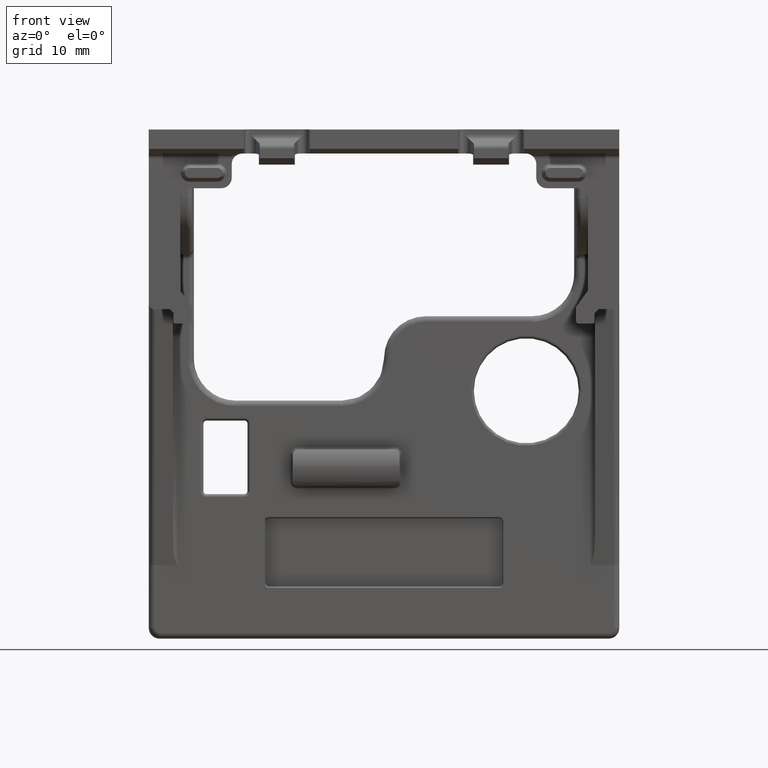
[diagram: clean part render]
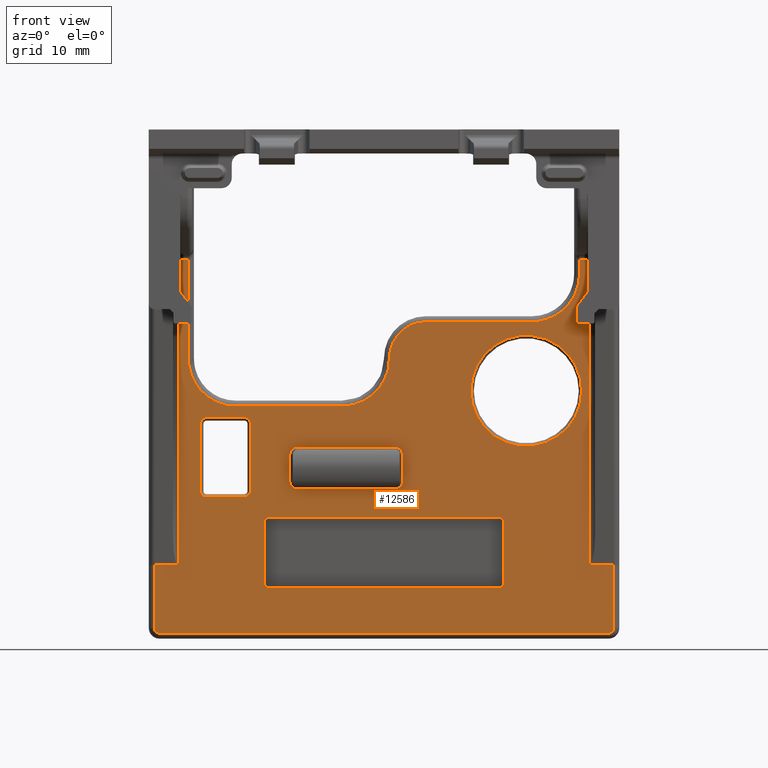
[diagram: same view with one face highlighted and labeled with its STEP entity id]
A machine part, front view. The second image highlights one B-rep face of the part: STEP entity #12586.
In plain terms, the highlighted planar face has unit normal (0, 1, 0).
Its self-contained STEP definition (entity closure, byte-faithful):
#5751=CARTESIAN_POINT('',(-1.69E1,1.568797314278E-10,3.2E0));
#5752=DIRECTION('',(0.E0,1.E0,0.E0));
#5753=DIRECTION('',(-1.E0,0.E0,0.E0));
#5754=AXIS2_PLACEMENT_3D('',#5751,#5752,#5753);
#5766=DIRECTION('',(0.E0,0.E0,-1.E0));
#5767=VECTOR('',#5766,5.9E0);
#5768=CARTESIAN_POINT('',(-1.137248412894E1,0.E0,-6.1E0));
#5769=LINE('',#5768,#5767);
#5770=DIRECTION('',(1.E0,0.E0,0.E0));
#5771=VECTOR('',#5770,2.19E1);
#5772=CARTESIAN_POINT('',(-1.095E1,0.E0,-1.242248412894E1));
#5773=LINE('',#5772,#5771);
#5774=DIRECTION('',(0.E0,0.E0,1.E0));
#5775=VECTOR('',#5774,5.9E0);
#5776=CARTESIAN_POINT('',(1.137248412894E1,0.E0,-1.2E1));
#5777=LINE('',#5776,#5775);
#5778=DIRECTION('',(-1.E0,0.E0,0.E0));
#5779=VECTOR('',#5778,2.19E1);
#5780=CARTESIAN_POINT('',(1.095E1,0.E0,-5.677515871064E0));
#5781=LINE('',#5780,#5779);
#5782=CARTESIAN_POINT('',(-8.225E0,-1.701394580778E-10,-2.27E0));
#5783=DIRECTION('',(0.E0,-1.E0,0.E0));
#5784=DIRECTION('',(-1.E0,0.E0,0.E0));
#5785=AXIS2_PLACEMENT_3D('',#5782,#5783,#5784);
#5787=DIRECTION('',(1.E0,0.E0,-5.068109294991E-11));
#5788=VECTOR('',#5787,9.250000001111E0);
#5789=CARTESIAN_POINT('',(-8.225000001138E0,0.E0,-3.015674315309E0));
#5790=LINE('',#5789,#5788);
#5791=CARTESIAN_POINT('',(1.025E0,-1.701394580778E-10,-2.27E0));
#5792=DIRECTION('',(0.E0,-1.E0,0.E0));
#5793=DIRECTION('',(0.E0,0.E0,-1.E0));
#5794=AXIS2_PLACEMENT_3D('',#5791,#5792,#5793);
#5796=DIRECTION('',(1.875200438538E-10,0.E0,1.E0));
#5797=VECTOR('',#5796,2.500000001111E0);
#5798=CARTESIAN_POINT('',(1.770674315309E0,0.E0,-2.270000001138E0));
#5799=LINE('',#5798,#5797);
#5800=CARTESIAN_POINT('',(1.025E0,-1.701394580778E-10,2.3E-1));
#5801=DIRECTION('',(0.E0,-1.E0,0.E0));
#5802=DIRECTION('',(1.E0,0.E0,0.E0));
#5803=AXIS2_PLACEMENT_3D('',#5800,#5801,#5802);
#5805=DIRECTION('',(-1.E0,0.E0,5.068105694267E-11));
#5806=VECTOR('',#5805,9.250000001111E0);
#5807=CARTESIAN_POINT('',(1.025000001138E0,0.E0,9.756743153089E-1));
#5808=LINE('',#5807,#5806);
#5809=CARTESIAN_POINT('',(-8.225E0,-1.701394580778E-10,2.3E-1));
#5810=DIRECTION('',(0.E0,-1.E0,0.E0));
#5811=DIRECTION('',(0.E0,0.E0,1.E0));
#5812=AXIS2_PLACEMENT_3D('',#5809,#5810,#5811);
#5814=DIRECTION('',(-1.875200438538E-10,0.E0,-1.E0));
#5815=VECTOR('',#5814,2.500000001111E0);
#5816=CARTESIAN_POINT('',(-8.970674315309E0,0.E0,2.300000011381E-1));
#5817=LINE('',#5816,#5815);
#5818=DIRECTION('',(-1.E0,0.E0,0.E0));
#5819=VECTOR('',#5818,2.282402475635E0);
#5820=CARTESIAN_POINT('',(2.188240247564E1,0.E0,-1.026E1));
#5821=LINE('',#5820,#5819);
#5834=CARTESIAN_POINT('',(1.96E1,0.E0,-1.026E1));
#5836=DIRECTION('',(0.E0,0.E0,-1.E0));
#5837=VECTOR('',#5836,2.861E1);
#5838=CARTESIAN_POINT('',(1.96E1,0.E0,1.835E1));
#5839=LINE('',#5838,#5837);
#5849=CARTESIAN_POINT('',(1.91E1,-2.807309940067E-12,1.835E1));
#5850=DIRECTION('',(0.E0,1.E0,0.E0));
#5851=DIRECTION('',(0.E0,0.E0,1.E0));
#5852=AXIS2_PLACEMENT_3D('',#5849,#5850,#5851);
#5864=DIRECTION('',(9.999999999994E-1,-1.115473910280E-6,-3.820009639332E-12));
#5865=VECTOR('',#5864,4.650137060154E-1);
#5866=CARTESIAN_POINT('',(1.863498629398E1,5.187106569826E-7,1.885E1));
#5867=LINE('',#5866,#5865);
#5877=CARTESIAN_POINT('',(1.861753122991E1,3.261871760391E-6,1.885015230477E1));
#5878=CARTESIAN_POINT('',(1.862043529786E1,3.119078111559E-6,1.885010188189E1));
#5879=CARTESIAN_POINT('',(1.862624843806E1,-1.968533619485E-6,
1.885001947512E1));
#5880=CARTESIAN_POINT('',(1.863207196471E1,8.179891274100E-7,1.884999948886E1));
#5881=CARTESIAN_POINT('',(1.863498629398E1,5.187106569826E-7,1.885E1));
#6058=DIRECTION('',(-6.750178572765E-10,-2.271371194695E-6,-9.999999999974E-1));
#6059=VECTOR('',#6058,1.428368905518E0);
#6060=CARTESIAN_POINT('',(1.861753122991E1,3.261871760391E-6,1.885015230477E1));
#6061=LINE('',#6060,#6059);
#6066=CARTESIAN_POINT('',(1.861753122895E1,1.751577299869E-8,1.742178339925E1));
#6067=CARTESIAN_POINT('',(1.861753136959E1,3.725587004752E-9,1.731899422895E1));
#6068=CARTESIAN_POINT('',(1.861090192886E1,-1.729043933302E-9,
1.708360599469E1));
#6069=CARTESIAN_POINT('',(1.855656742175E1,4.632732594284E-10,
1.662925656447E1));
#6070=CARTESIAN_POINT('',(1.843393713479E1,-1.240491044118E-10,
1.610786980490E1));
#6071=CARTESIAN_POINT('',(1.822464242556E1,3.292315821890E-11,
1.554811762838E1));
#6072=CARTESIAN_POINT('',(1.791916062675E1,-7.643528463798E-12,
1.498436557461E1));
#6073=CARTESIAN_POINT('',(1.751977342179E1,-2.349044363712E-12,
1.445112459691E1));
#6074=CARTESIAN_POINT('',(1.704021030981E1,1.703970591865E-11,
1.397842787223E1));
#6075=CARTESIAN_POINT('',(1.650376020506E1,-6.580977931087E-11,
1.358832561388E1));
#6076=CARTESIAN_POINT('',(1.594142414470E1,2.461994113248E-10,
1.329310038423E1));
#6077=CARTESIAN_POINT('',(1.538804938341E1,-9.189878659884E-10,
1.309334303499E1));
#6078=CARTESIAN_POINT('',(1.487707445563E1,3.429752052629E-9,1.297807058479E1));
#6079=CARTESIAN_POINT('',(1.443820637953E1,-1.280002034453E-8,
1.292827306553E1));
#6080=CARTESIAN_POINT('',(1.421459482188E1,2.758021276881E-8,1.292246885623E1));
#6081=CARTESIAN_POINT('',(1.411821660075E1,1.792349196839E-8,1.292246877105E1));
#6105=DIRECTION('',(-1.E0,-1.771408211113E-9,0.E0));
#6106=VECTOR('',#6105,1.011821660075E1);
#6107=CARTESIAN_POINT('',(1.411821660075E1,1.792349196839E-8,1.292246877105E1));
#6108=LINE('',#6107,#6106);
#6118=CARTESIAN_POINT('',(4.E0,1.893596390801E-12,9.44E0));
#6119=DIRECTION('',(0.E0,-1.E0,0.E0));
#6120=DIRECTION('',(0.E0,0.E0,1.E0));
#6121=AXIS2_PLACEMENT_3D('',#6118,#6119,#6120);
#6133=DIRECTION('',(-1.332267629550E-13,0.E0,-1.E0));
#6134=VECTOR('',#6133,4.E-2);
#6135=CARTESIAN_POINT('',(5.175312289502E-1,0.E0,9.44E0));
#6136=LINE('',#6135,#6134);
#6146=CARTESIAN_POINT('',(-4.E0,5.844158490476E-12,9.4E0));
#6147=DIRECTION('',(0.E0,1.E0,0.E0));
#6148=DIRECTION('',(1.E0,0.E0,0.E0));
#6149=AXIS2_PLACEMENT_3D('',#6146,#6147,#6148);
#6161=DIRECTION('',(-1.E0,1.779547808840E-9,0.E0));
#6162=VECTOR('',#6161,1.011821660075E1);
#6163=CARTESIAN_POINT('',(-4.E0,0.E0,4.882468771050E0));
#6164=LINE('',#6163,#6162);
#6174=CARTESIAN_POINT('',(-1.411821660075E1,1.800585018123E-8,
4.882468771050E0));
#6175=CARTESIAN_POINT('',(-1.421460253727E1,2.980366850250E-8,
4.882468875632E0));
#6176=CARTESIAN_POINT('',(-1.443822652081E1,-1.383193026941E-8,
4.888274041215E0));
#6177=CARTESIAN_POINT('',(-1.487710297335E1,3.706253189172E-9,
4.938075311153E0));
#6178=CARTESIAN_POINT('',(-1.538807954412E1,-9.930824872801E-10,
5.053351862735E0));
#6179=CARTESIAN_POINT('',(-1.594144972586E1,2.660767599489E-10,
5.253111979931E0));
#6180=CARTESIAN_POINT('',(-1.650377756044E1,-7.122455251557E-11,
5.548336907034E0));
#6181=CARTESIAN_POINT('',(-1.704021815253E1,1.882145011335E-11,
5.938435229966E0));
#6182=CARTESIAN_POINT('',(-1.751977287025E1,-4.061247937846E-12,
6.411124785857E0));
#6183=CARTESIAN_POINT('',(-1.791915446900E1,-2.576458361969E-12,
6.944356852949E0));
#6184=CARTESIAN_POINT('',(-1.822463424895E1,1.436708138572E-11,
7.508100424165E0));
#6185=CARTESIAN_POINT('',(-1.843393006191E1,-5.489186718092E-11,
8.067847012847E0));
#6186=CARTESIAN_POINT('',(-1.855656349356E1,2.052003873380E-10,
8.589233533288E0));
#6187=CARTESIAN_POINT('',(-1.861090093122E1,-7.659096821709E-10,
9.043589212656E0));
#6188=CARTESIAN_POINT('',(-1.861753138869E1,1.650322333507E-9,
9.278987724248E0));
#6189=CARTESIAN_POINT('',(-1.861753122895E1,1.687169985202E-8,
9.381783399254E0));
#6222=DIRECTION('',(-2.895194995721E-10,3.399453058779E-7,9.999999999999E-1));
#6223=VECTOR('',#6222,9.468368905473E0);
#6224=CARTESIAN_POINT('',(-1.861753122895E1,1.687169985202E-8,
9.381783399254E0));
#6225=LINE('',#6224,#6223);
#6226=CARTESIAN_POINT('',(-1.861753123169E1,3.235599263587E-6,
1.885015230473E1));
#6255=CARTESIAN_POINT('',(-1.863498629398E1,5.086823554971E-7,1.885E1));
#6256=CARTESIAN_POINT('',(-1.863207196495E1,8.015990831187E-7,
1.884999949294E1));
#6257=CARTESIAN_POINT('',(-1.862624843784E1,-1.949993680886E-6,
1.885001953246E1));
#6258=CARTESIAN_POINT('',(-1.862043529945E1,3.098388278654E-6,
1.885010187758E1));
#6259=CARTESIAN_POINT('',(-1.861753123169E1,3.235599263587E-6,
1.885015230473E1));
#6272=DIRECTION('',(9.999999999994E-1,1.093908306169E-6,3.713049369397E-12));
#6273=VECTOR('',#6272,4.650137060196E-1);
#6274=CARTESIAN_POINT('',(-1.91E1,0.E0,1.885E1));
#6275=LINE('',#6274,#6273);
#6285=CARTESIAN_POINT('',(-1.91E1,-2.807309940067E-12,1.835E1));
#6286=DIRECTION('',(0.E0,1.E0,0.E0));
#6287=DIRECTION('',(-1.E0,0.E0,0.E0));
#6288=AXIS2_PLACEMENT_3D('',#6285,#6286,#6287);
#6300=CARTESIAN_POINT('',(-1.96E1,0.E0,-1.026E1));
#6318=DIRECTION('',(0.E0,0.E0,1.E0));
#6319=VECTOR('',#6318,2.861E1);
#6320=CARTESIAN_POINT('',(-1.96E1,0.E0,-1.026E1));
#6321=LINE('',#6320,#6319);
#6322=DIRECTION('',(-1.E0,0.E0,0.E0));
#6323=VECTOR('',#6322,2.282402475635E0);
#6324=CARTESIAN_POINT('',(-1.96E1,0.E0,-1.026E1));
#6325=LINE('',#6324,#6323);
#6756=DIRECTION('',(-1.104923573013E-5,0.E0,-9.999999999390E-1));
#6757=VECTOR('',#6756,6.000000000366E0);
#6758=CARTESIAN_POINT('',(-2.188240247564E1,0.E0,-1.026E1));
#6759=LINE('',#6758,#6757);
#6764=CARTESIAN_POINT('',(-2.14E1,2.745026428386E-12,-1.626E1));
#6765=DIRECTION('',(0.E0,-1.E0,0.E0));
#6766=DIRECTION('',(-1.E0,0.E0,0.E0));
#6767=AXIS2_PLACEMENT_3D('',#6764,#6765,#6766);
#6779=DIRECTION('',(1.E0,0.E0,0.E0));
#6780=VECTOR('',#6779,4.28E1);
#6781=CARTESIAN_POINT('',(-2.14E1,0.E0,-1.674246877105E1));
#6782=LINE('',#6781,#6780);
#6792=CARTESIAN_POINT('',(2.14E1,2.745026428386E-12,-1.626E1));
#6793=DIRECTION('',(0.E0,-1.E0,0.E0));
#6794=DIRECTION('',(0.E0,0.E0,-1.E0));
#6795=AXIS2_PLACEMENT_3D('',#6792,#6793,#6794);
#6824=DIRECTION('',(-1.104923572954E-5,0.E0,9.999999999390E-1));
#6825=VECTOR('',#6824,6.000000000366E0);
#6826=CARTESIAN_POINT('',(2.188246877105E1,0.E0,-1.626E1));
#6827=LINE('',#6826,#6825);
#8996=CARTESIAN_POINT('',(1.355E1,7.773781618425E-13,6.34E0));
#8997=DIRECTION('',(0.E0,1.E0,0.E0));
#8998=DIRECTION('',(-1.E0,0.E0,0.E0));
#8999=AXIS2_PLACEMENT_3D('',#8996,#8997,#8998);
#9011=CARTESIAN_POINT('',(1.355E1,7.773781618425E-13,6.34E0));
#9012=DIRECTION('',(0.E0,1.E0,0.E0));
#9013=DIRECTION('',(1.E0,0.E0,0.E0));
#9014=AXIS2_PLACEMENT_3D('',#9011,#9012,#9013);
#9082=CARTESIAN_POINT('',(-1.33E1,1.568797314278E-10,-3.2E0));
#9083=DIRECTION('',(0.E0,1.E0,0.E0));
#9084=DIRECTION('',(1.E0,0.E0,1.941465065629E-14));
#9085=AXIS2_PLACEMENT_3D('',#9082,#9083,#9084);
#9097=DIRECTION('',(-1.E0,0.E0,-2.238826408044E-12));
#9098=VECTOR('',#9097,3.600000000272E0);
#9099=CARTESIAN_POINT('',(-1.329999999962E1,0.E0,-3.771856913158E0));
#9100=LINE('',#9099,#9098);
#9110=CARTESIAN_POINT('',(-1.69E1,1.568797314278E-10,-3.2E0));
#9111=DIRECTION('',(0.E0,1.E0,0.E0));
#9112=DIRECTION('',(0.E0,0.E0,-1.E0));
#9113=AXIS2_PLACEMENT_3D('',#9110,#9111,#9112);
#9125=DIRECTION('',(-1.258992909871E-12,0.E0,1.E0));
#9126=VECTOR('',#9125,6.400000000272E0);
#9127=CARTESIAN_POINT('',(-1.747185691316E1,0.E0,-3.200000000379E0));
#9128=LINE('',#9127,#9126);
#9166=DIRECTION('',(1.259548021384E-12,0.E0,-1.E0));
#9167=VECTOR('',#9166,6.400000000272E0);
#9168=CARTESIAN_POINT('',(-1.272814308684E1,0.E0,3.200000000379E0));
#9169=LINE('',#9168,#9167);
#9179=CARTESIAN_POINT('',(-1.33E1,1.568797314278E-10,3.2E0));
#9180=DIRECTION('',(0.E0,1.E0,0.E0));
#9181=DIRECTION('',(0.E0,0.E0,1.E0));
#9182=AXIS2_PLACEMENT_3D('',#9179,#9180,#9181);
#9206=DIRECTION('',(1.E0,0.E0,2.239073124272E-12));
#9207=VECTOR('',#9206,3.600000000272E0);
#9208=CARTESIAN_POINT('',(-1.690000000038E1,0.E0,3.771856913158E0));
#9209=LINE('',#9208,#9207);
#9223=CARTESIAN_POINT('',(-1.095E1,0.E0,-6.1E0));
#9224=DIRECTION('',(0.E0,1.E0,0.E0));
#9225=DIRECTION('',(-1.E0,0.E0,0.E0));
#9226=AXIS2_PLACEMENT_3D('',#9223,#9224,#9225);
#9241=CARTESIAN_POINT('',(1.095E1,0.E0,-6.1E0));
#9242=DIRECTION('',(0.E0,1.E0,0.E0));
#9243=DIRECTION('',(0.E0,0.E0,1.E0));
#9244=AXIS2_PLACEMENT_3D('',#9241,#9242,#9243);
#9259=CARTESIAN_POINT('',(1.095E1,0.E0,-1.2E1));
#9260=DIRECTION('',(0.E0,1.E0,0.E0));
#9261=DIRECTION('',(1.E0,0.E0,0.E0));
#9262=AXIS2_PLACEMENT_3D('',#9259,#9260,#9261);
#9277=CARTESIAN_POINT('',(-1.095E1,0.E0,-1.2E1));
#9278=DIRECTION('',(0.E0,1.E0,0.E0));
#9279=DIRECTION('',(0.E0,0.E0,-1.E0));
#9280=AXIS2_PLACEMENT_3D('',#9277,#9278,#9279);
#10981=VERTEX_POINT('',#6300);
#10984=VERTEX_POINT('',#5834);
#11132=CARTESIAN_POINT('',(2.188240247564E1,0.E0,-1.026E1));
#11133=VERTEX_POINT('',#11132);
#11148=CARTESIAN_POINT('',(-2.188240247564E1,0.E0,-1.026E1));
#11149=VERTEX_POINT('',#11148);
#11268=VERTEX_POINT('',#6174);
#11269=VERTEX_POINT('',#6189);
#11270=CARTESIAN_POINT('',(-4.E0,0.E0,4.882468771050E0));
#11271=VERTEX_POINT('',#11270);
#11274=CARTESIAN_POINT('',(5.175288114768E-1,5.844158490476E-12,9.4E0));
#11275=VERTEX_POINT('',#11274);
#11278=CARTESIAN_POINT('',(5.175312289502E-1,0.E0,9.44E0));
#11279=VERTEX_POINT('',#11278);
#11282=CARTESIAN_POINT('',(4.E0,1.893596390801E-12,1.292246739496E1));
#11283=VERTEX_POINT('',#11282);
#11286=CARTESIAN_POINT('',(1.411821660075E1,1.792349196839E-8,
1.292246877105E1));
#11287=VERTEX_POINT('',#11286);
#11288=VERTEX_POINT('',#6066);
#11291=CARTESIAN_POINT('',(2.188246877105E1,0.E0,-1.626E1));
#11292=VERTEX_POINT('',#11291);
#11293=CARTESIAN_POINT('',(2.14E1,2.745026428386E-12,-1.674246711424E1));
#11294=VERTEX_POINT('',#11293);
#11297=CARTESIAN_POINT('',(-2.14E1,0.E0,-1.674246877105E1));
#11298=VERTEX_POINT('',#11297);
#11301=CARTESIAN_POINT('',(-2.188246711424E1,2.745026428386E-12,-1.626E1));
#11302=VERTEX_POINT('',#11301);
#11305=VERTEX_POINT('',#6226);
#11308=VERTEX_POINT('',#6255);
#11310=CARTESIAN_POINT('',(-1.91E1,0.E0,1.885E1));
#11311=VERTEX_POINT('',#11310);
#11312=CARTESIAN_POINT('',(-1.959999832450E1,-2.807309940067E-12,1.835E1));
#11313=VERTEX_POINT('',#11312);
#11314=CARTESIAN_POINT('',(1.96E1,0.E0,1.835E1));
#11315=VERTEX_POINT('',#11314);
#11316=CARTESIAN_POINT('',(1.91E1,-2.807309940067E-12,1.884999832450E1));
#11317=VERTEX_POINT('',#11316);
#11318=CARTESIAN_POINT('',(1.863498629398E1,5.187106569826E-7,1.885E1));
#11319=VERTEX_POINT('',#11318);
#11320=VERTEX_POINT('',#5877);
#11322=CARTESIAN_POINT('',(8.278143710276E0,7.773781618425E-13,6.34E0));
#11323=CARTESIAN_POINT('',(1.882185628972E1,7.773781618425E-13,6.34E0));
#11324=VERTEX_POINT('',#11322);
#11325=VERTEX_POINT('',#11323);
#11330=CARTESIAN_POINT('',(-1.272815194346E1,1.568797314278E-10,-3.2E0));
#11331=CARTESIAN_POINT('',(-1.33E1,1.568797314278E-10,-3.771848056543E0));
#11332=VERTEX_POINT('',#11330);
#11333=VERTEX_POINT('',#11331);
#11338=CARTESIAN_POINT('',(-1.689999999989E1,0.E0,-3.771856913166E0));
#11339=VERTEX_POINT('',#11338);
#11342=CARTESIAN_POINT('',(-1.747184805654E1,1.568797314278E-10,-3.2E0));
#11343=VERTEX_POINT('',#11342);
#11346=CARTESIAN_POINT('',(-1.747185691317E1,0.E0,3.199999999893E0));
#11347=VERTEX_POINT('',#11346);
#11350=CARTESIAN_POINT('',(-1.69E1,1.568797314278E-10,3.771848056543E0));
#11351=VERTEX_POINT('',#11350);
#11354=CARTESIAN_POINT('',(-1.330000000011E1,0.E0,3.771856913166E0));
#11355=VERTEX_POINT('',#11354);
#11358=CARTESIAN_POINT('',(-1.272815194346E1,1.568797314278E-10,3.2E0));
#11359=VERTEX_POINT('',#11358);
#12040=CARTESIAN_POINT('',(-1.137248412894E1,0.E0,-6.1E0));
#12042=VERTEX_POINT('',#12040);
#12044=CARTESIAN_POINT('',(-1.095E1,0.E0,-5.677515871064E0));
#12046=VERTEX_POINT('',#12044);
#12048=CARTESIAN_POINT('',(-1.095E1,0.E0,-1.242248412894E1));
#12050=VERTEX_POINT('',#12048);
#12052=CARTESIAN_POINT('',(-1.137248412894E1,0.E0,-1.2E1));
#12054=VERTEX_POINT('',#12052);
#12056=CARTESIAN_POINT('',(1.095E1,0.E0,-5.677515871064E0));
#12058=VERTEX_POINT('',#12056);
#12060=CARTESIAN_POINT('',(1.137248412894E1,0.E0,-6.1E0));
#12062=VERTEX_POINT('',#12060);
#12064=CARTESIAN_POINT('',(1.137248412894E1,0.E0,-1.2E1));
#12066=VERTEX_POINT('',#12064);
#12068=CARTESIAN_POINT('',(1.095E1,0.E0,-1.242248412894E1));
#12070=VERTEX_POINT('',#12068);
#12080=CARTESIAN_POINT('',(-8.970665092453E0,-1.701394580778E-10,-2.27E0));
#12081=CARTESIAN_POINT('',(-8.225E0,-1.701394580778E-10,-3.015665092453E0));
#12082=VERTEX_POINT('',#12080);
#12083=VERTEX_POINT('',#12081);
#12088=CARTESIAN_POINT('',(1.024999999973E0,0.E0,-3.015674315778E0));
#12089=VERTEX_POINT('',#12088);
#12092=CARTESIAN_POINT('',(1.770665092453E0,-1.701394580778E-10,-2.27E0));
#12093=VERTEX_POINT('',#12092);
#12096=CARTESIAN_POINT('',(1.770674315778E0,0.E0,2.299999999733E-1));
#12097=VERTEX_POINT('',#12096);
#12100=CARTESIAN_POINT('',(1.025E0,-1.701394580778E-10,9.756650924534E-1));
#12101=VERTEX_POINT('',#12100);
#12104=CARTESIAN_POINT('',(-8.224999999973E0,0.E0,9.756743157777E-1));
#12105=VERTEX_POINT('',#12104);
#12108=CARTESIAN_POINT('',(-8.970665092453E0,-1.701394580778E-10,2.3E-1));
#12109=VERTEX_POINT('',#12108);
#12472=CARTESIAN_POINT('',(0.E0,0.E0,0.E0));
#12473=DIRECTION('',(0.E0,1.E0,0.E0));
#12474=DIRECTION('',(1.E0,0.E0,0.E0));
#12475=AXIS2_PLACEMENT_3D('',#12472,#12473,#12474);
#12476=PLANE('',#12475);
#12478=ORIENTED_EDGE('',*,*,#12477,.F.);
#12480=ORIENTED_EDGE('',*,*,#12479,.F.);
#12482=ORIENTED_EDGE('',*,*,#12481,.F.);
#12484=ORIENTED_EDGE('',*,*,#12483,.F.);
#12486=ORIENTED_EDGE('',*,*,#12485,.F.);
#12488=ORIENTED_EDGE('',*,*,#12487,.F.);
#12490=ORIENTED_EDGE('',*,*,#12489,.F.);
#12492=ORIENTED_EDGE('',*,*,#12491,.T.);
#12494=ORIENTED_EDGE('',*,*,#12493,.T.);
#12496=ORIENTED_EDGE('',*,*,#12495,.T.);
#12498=ORIENTED_EDGE('',*,*,#12497,.T.);
#12500=ORIENTED_EDGE('',*,*,#12499,.F.);
#12502=ORIENTED_EDGE('',*,*,#12501,.F.);
#12504=ORIENTED_EDGE('',*,*,#12503,.F.);
#12506=ORIENTED_EDGE('',*,*,#12505,.F.);
#12508=ORIENTED_EDGE('',*,*,#12507,.F.);
#12510=ORIENTED_EDGE('',*,*,#12509,.F.);
#12512=ORIENTED_EDGE('',*,*,#12511,.F.);
#12514=ORIENTED_EDGE('',*,*,#12513,.F.);
#12516=ORIENTED_EDGE('',*,*,#12515,.F.);
#12518=ORIENTED_EDGE('',*,*,#12517,.T.);
#12520=ORIENTED_EDGE('',*,*,#12519,.T.);
#12522=ORIENTED_EDGE('',*,*,#12521,.T.);
#12524=ORIENTED_EDGE('',*,*,#12523,.T.);
#12525=EDGE_LOOP('',(#12478,#12480,#12482,#12484,#12486,#12488,#12490,#12492,
#12494,#12496,#12498,#12500,#12502,#12504,#12506,#12508,#12510,#12512,#12514,
#12516,#12518,#12520,#12522,#12524));
#12526=FACE_OUTER_BOUND('',#12525,.F.);
#12528=ORIENTED_EDGE('',*,*,#12527,.F.);
#12530=ORIENTED_EDGE('',*,*,#12529,.F.);
#12531=EDGE_LOOP('',(#12528,#12530));
#12532=FACE_BOUND('',#12531,.F.);
#12534=ORIENTED_EDGE('',*,*,#12533,.F.);
#12536=ORIENTED_EDGE('',*,*,#12535,.F.);
#12538=ORIENTED_EDGE('',*,*,#12537,.F.);
#12540=ORIENTED_EDGE('',*,*,#12539,.F.);
#12541=ORIENTED_EDGE('',*,*,#12462,.F.);
#12543=ORIENTED_EDGE('',*,*,#12542,.F.);
#12545=ORIENTED_EDGE('',*,*,#12544,.F.);
#12547=ORIENTED_EDGE('',*,*,#12546,.F.);
#12548=EDGE_LOOP('',(#12534,#12536,#12538,#12540,#12541,#12543,#12545,#12547));
#12549=FACE_BOUND('',#12548,.F.);
#12551=ORIENTED_EDGE('',*,*,#12550,.T.);
#12553=ORIENTED_EDGE('',*,*,#12552,.F.);
#12555=ORIENTED_EDGE('',*,*,#12554,.T.);
#12557=ORIENTED_EDGE('',*,*,#12556,.F.);
#12559=ORIENTED_EDGE('',*,*,#12558,.T.);
#12561=ORIENTED_EDGE('',*,*,#12560,.F.);
#12563=ORIENTED_EDGE('',*,*,#12562,.T.);
#12565=ORIENTED_EDGE('',*,*,#12564,.F.);
#12566=EDGE_LOOP('',(#12551,#12553,#12555,#12557,#12559,#12561,#12563,#12565));
#12567=FACE_BOUND('',#12566,.F.);
#12569=ORIENTED_EDGE('',*,*,#12568,.T.);
#12571=ORIENTED_EDGE('',*,*,#12570,.T.);
#12573=ORIENTED_EDGE('',*,*,#12572,.T.);
#12575=ORIENTED_EDGE('',*,*,#12574,.T.);
#12577=ORIENTED_EDGE('',*,*,#12576,.T.);
#12579=ORIENTED_EDGE('',*,*,#12578,.T.);
#12581=ORIENTED_EDGE('',*,*,#12580,.T.);
#12583=ORIENTED_EDGE('',*,*,#12582,.T.);
#12584=EDGE_LOOP('',(#12569,#12571,#12573,#12575,#12577,#12579,#12581,#12583));
#12585=FACE_BOUND('',#12584,.F.);
#12586=ADVANCED_FACE('',(#12526,#12532,#12549,#12567,#12585),#12476,.F.);
#5755=CIRCLE('',#5754,5.718480565427E-1);
#5786=CIRCLE('',#5785,7.456650924534E-1);
#5795=CIRCLE('',#5794,7.456650924534E-1);
#5804=CIRCLE('',#5803,7.456650924534E-1);
#5813=CIRCLE('',#5812,7.456650924534E-1);
#5853=CIRCLE('',#5852,4.999983244961E-1);
#5882=B_SPLINE_CURVE_WITH_KNOTS('',3,(#5877,#5878,#5879,#5880,#5881),
.UNSPECIFIED.,.F.,.F.,(4,1,4),(0.E0,5.E-1,1.E0),.UNSPECIFIED.);
#6082=B_SPLINE_CURVE_WITH_KNOTS('',3,(#6066,#6067,#6068,#6069,#6070,#6071,#6072,
#6073,#6074,#6075,#6076,#6077,#6078,#6079,#6080,#6081),.UNSPECIFIED.,.F.,.F.,(4,
1,1,1,1,1,1,1,1,1,1,1,1,4),(0.E0,7.692307692308E-2,1.538461538462E-1,
2.307692307692E-1,3.076923076923E-1,3.846153846154E-1,4.615384615385E-1,
5.384615384615E-1,6.153846153846E-1,6.923076923077E-1,7.692307692308E-1,
8.461538461538E-1,9.230769230769E-1,1.E0),.UNSPECIFIED.);
#6122=CIRCLE('',#6121,3.482467394961E0);
#6150=CIRCLE('',#6149,4.517528811477E0);
#6190=B_SPLINE_CURVE_WITH_KNOTS('',3,(#6174,#6175,#6176,#6177,#6178,#6179,#6180,
#6181,#6182,#6183,#6184,#6185,#6186,#6187,#6188,#6189),.UNSPECIFIED.,.F.,.F.,(4,
1,1,1,1,1,1,1,1,1,1,1,1,4),(0.E0,7.692307692308E-2,1.538461538462E-1,
2.307692307692E-1,3.076923076923E-1,3.846153846154E-1,4.615384615385E-1,
5.384615384615E-1,6.153846153846E-1,6.923076923077E-1,7.692307692308E-1,
8.461538461538E-1,9.230769230769E-1,1.E0),.UNSPECIFIED.);
#6260=B_SPLINE_CURVE_WITH_KNOTS('',3,(#6255,#6256,#6257,#6258,#6259),
.UNSPECIFIED.,.F.,.F.,(4,1,4),(0.E0,5.E-1,1.E0),.UNSPECIFIED.);
#6289=CIRCLE('',#6288,4.999983244987E-1);
#6768=CIRCLE('',#6767,4.824671142386E-1);
#6796=CIRCLE('',#6795,4.824671142386E-1);
#9000=CIRCLE('',#8999,5.271856289724E0);
#9015=CIRCLE('',#9014,5.271856289724E0);
#9086=CIRCLE('',#9085,5.718480565427E-1);
#9114=CIRCLE('',#9113,5.718480565427E-1);
#9183=CIRCLE('',#9182,5.718480565427E-1);
#9227=CIRCLE('',#9226,4.224841289363E-1);
#9245=CIRCLE('',#9244,4.224841289363E-1);
#9263=CIRCLE('',#9262,4.224841289363E-1);
#9281=CIRCLE('',#9280,4.224841289363E-1);
#12462=EDGE_CURVE('',#11347,#11351,#5755,.T.);
#12477=EDGE_CURVE('',#11133,#10984,#5821,.T.);
#12479=EDGE_CURVE('',#11292,#11133,#6827,.T.);
#12481=EDGE_CURVE('',#11294,#11292,#6796,.T.);
#12483=EDGE_CURVE('',#11298,#11294,#6782,.T.);
#12485=EDGE_CURVE('',#11302,#11298,#6768,.T.);
#12487=EDGE_CURVE('',#11149,#11302,#6759,.T.);
#12489=EDGE_CURVE('',#10981,#11149,#6325,.T.);
#12491=EDGE_CURVE('',#10981,#11313,#6321,.T.);
#12493=EDGE_CURVE('',#11313,#11311,#6289,.T.);
#12495=EDGE_CURVE('',#11311,#11308,#6275,.T.);
#12497=EDGE_CURVE('',#11308,#11305,#6260,.T.);
#12499=EDGE_CURVE('',#11269,#11305,#6225,.T.);
#12501=EDGE_CURVE('',#11268,#11269,#6190,.T.);
#12503=EDGE_CURVE('',#11271,#11268,#6164,.T.);
#12505=EDGE_CURVE('',#11275,#11271,#6150,.T.);
#12507=EDGE_CURVE('',#11279,#11275,#6136,.T.);
#12509=EDGE_CURVE('',#11283,#11279,#6122,.T.);
#12511=EDGE_CURVE('',#11287,#11283,#6108,.T.);
#12513=EDGE_CURVE('',#11288,#11287,#6082,.T.);
#12515=EDGE_CURVE('',#11320,#11288,#6061,.T.);
#12517=EDGE_CURVE('',#11320,#11319,#5882,.T.);
#12519=EDGE_CURVE('',#11319,#11317,#5867,.T.);
#12521=EDGE_CURVE('',#11317,#11315,#5853,.T.);
#12523=EDGE_CURVE('',#11315,#10984,#5839,.T.);
#12527=EDGE_CURVE('',#11324,#11325,#9000,.T.);
#12529=EDGE_CURVE('',#11325,#11324,#9015,.T.);
#12533=EDGE_CURVE('',#11332,#11333,#9086,.T.);
#12535=EDGE_CURVE('',#11359,#11332,#9169,.T.);
#12537=EDGE_CURVE('',#11355,#11359,#9183,.T.);
#12539=EDGE_CURVE('',#11351,#11355,#9209,.T.);
#12542=EDGE_CURVE('',#11343,#11347,#9128,.T.);
#12544=EDGE_CURVE('',#11339,#11343,#9114,.T.);
#12546=EDGE_CURVE('',#11333,#11339,#9100,.T.);
#12550=EDGE_CURVE('',#12042,#12054,#5769,.T.);
#12552=EDGE_CURVE('',#12050,#12054,#9281,.T.);
#12554=EDGE_CURVE('',#12050,#12070,#5773,.T.);
#12556=EDGE_CURVE('',#12066,#12070,#9263,.T.);
#12558=EDGE_CURVE('',#12066,#12062,#5777,.T.);
#12560=EDGE_CURVE('',#12058,#12062,#9245,.T.);
#12562=EDGE_CURVE('',#12058,#12046,#5781,.T.);
#12564=EDGE_CURVE('',#12042,#12046,#9227,.T.);
#12568=EDGE_CURVE('',#12082,#12083,#5786,.T.);
#12570=EDGE_CURVE('',#12083,#12089,#5790,.T.);
#12572=EDGE_CURVE('',#12089,#12093,#5795,.T.);
#12574=EDGE_CURVE('',#12093,#12097,#5799,.T.);
#12576=EDGE_CURVE('',#12097,#12101,#5804,.T.);
#12578=EDGE_CURVE('',#12101,#12105,#5808,.T.);
#12580=EDGE_CURVE('',#12105,#12109,#5813,.T.);
#12582=EDGE_CURVE('',#12109,#12082,#5817,.T.);